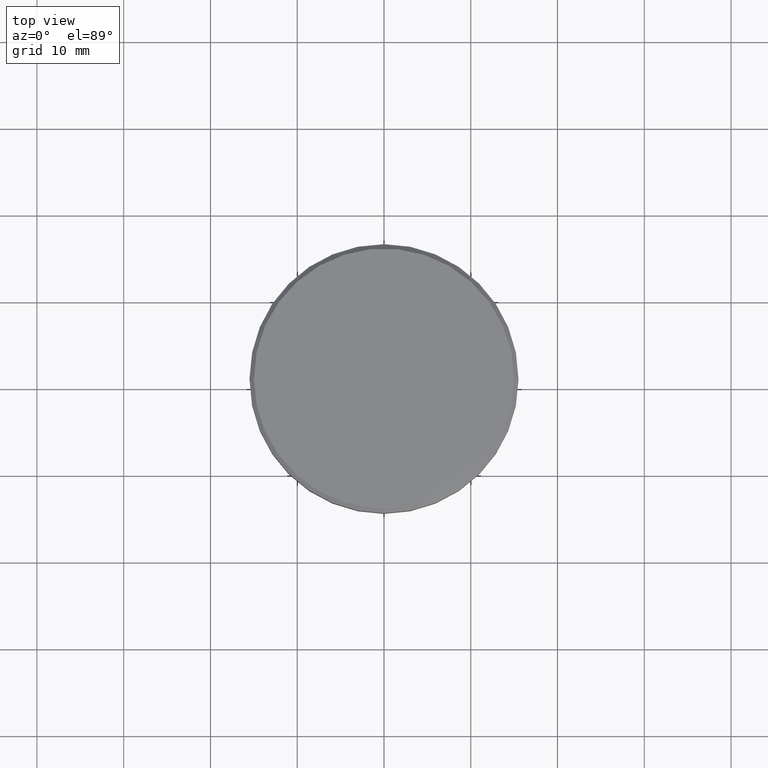
[diagram: clean part render]
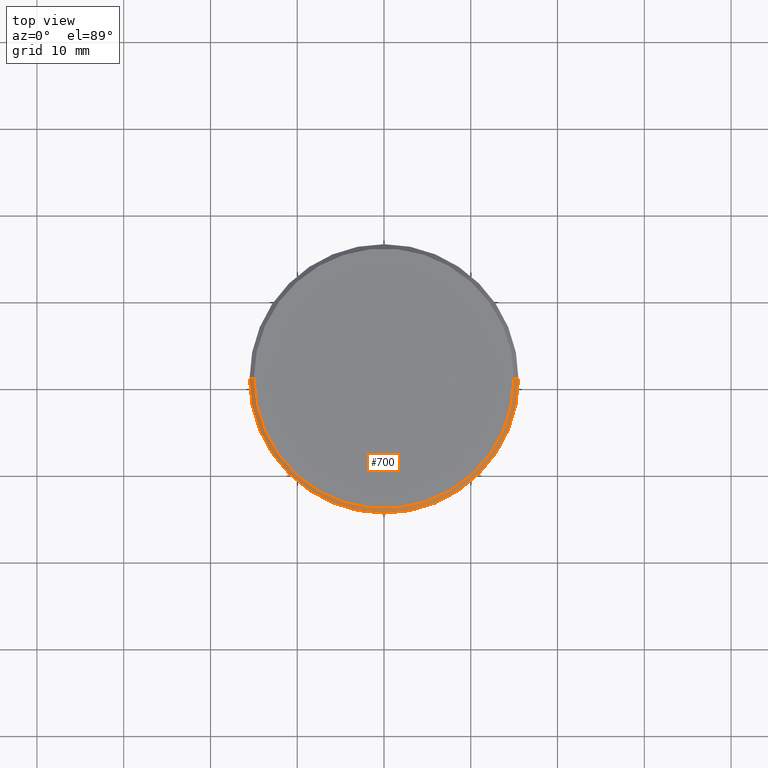
[diagram: same view with one face highlighted and labeled with its STEP entity id]
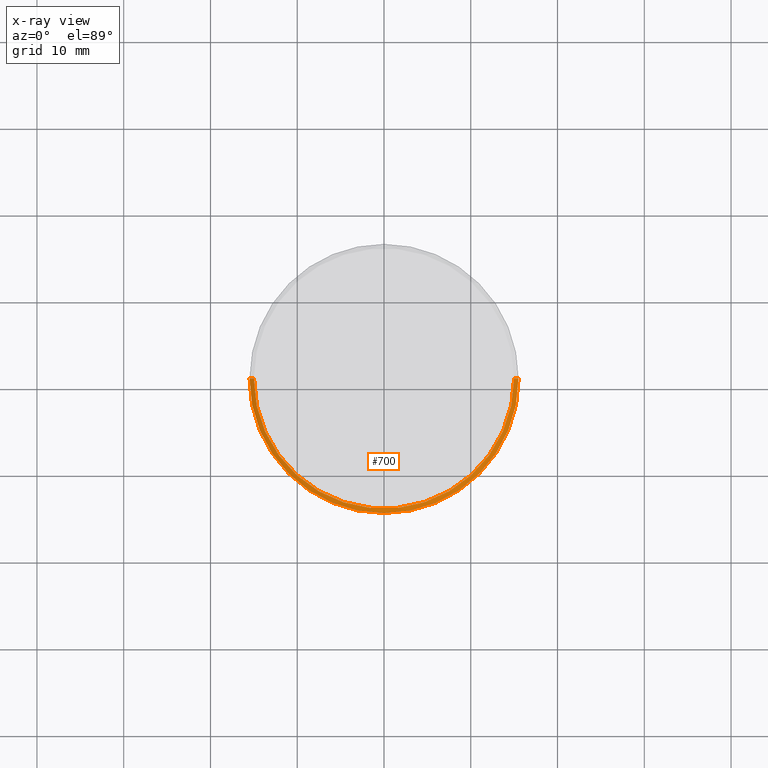
[diagram: x-ray of the same camera — body ghosted, the highlighted face saturated]
A machine part, top view. The second image highlights one B-rep face of the part: STEP entity #700.
The next image is the same camera in x-ray: the body ghosted, the highlighted face saturated — about 0% of this face is hidden behind the body in this view.
In plain terms, the highlighted conical surface has half-angle 45 deg.
Its self-contained STEP definition (entity closure, byte-faithful):
#49 = CARTESIAN_POINT ( 'NONE',  ( 0.000000000000000000, 0.000000000000000000, -0.5000000000000125455 ) ) ;
#61 = FACE_OUTER_BOUND ( 'NONE', #539, .T. ) ;
#73 = LINE ( 'NONE', #622, #1177 ) ;
#157 = ORIENTED_EDGE ( 'NONE', *, *, #1016, .F. ) ;
#160 = DIRECTION ( 'NONE',  ( -1.000000000000000000, 0.000000000000000000, 0.000000000000000000 ) ) ;
#206 = CARTESIAN_POINT ( 'NONE',  ( 15.00000000000000000, 1.836970198721029589E-15, 0.000000000000000000 ) ) ;
#230 = DIRECTION ( 'NONE',  ( 1.000000000000000000, 0.000000000000000000, 0.000000000000000000 ) ) ;
#244 = CARTESIAN_POINT ( 'NONE',  ( 0.000000000000000000, 0.000000000000000000, 0.000000000000000000 ) ) ;
#247 = VECTOR ( 'NONE', #837, 1000.000000000000000 ) ;
#252 = CARTESIAN_POINT ( 'NONE',  ( -15.00000000000000000, 0.000000000000000000, 0.000000000000000000 ) ) ;
#270 = CIRCLE ( 'NONE', #375, 15.50000000000000000 ) ;
#375 = AXIS2_PLACEMENT_3D ( 'NONE', #49, #489, #581 ) ;
#394 = ORIENTED_EDGE ( 'NONE', *, *, #567, .F. ) ;
#398 = LINE ( 'NONE', #206, #247 ) ;
#407 = CARTESIAN_POINT ( 'NONE',  ( 15.50000000000000000, 0.000000000000000000, -0.5000000000000125455 ) ) ;
#484 = CARTESIAN_POINT ( 'NONE',  ( -15.50000000000000000, 1.898202538678397557E-15, -0.5000000000000125455 ) ) ;
#489 = DIRECTION ( 'NONE',  ( 0.000000000000000000, 0.000000000000000000, -1.000000000000000000 ) ) ;
#539 = EDGE_LOOP ( 'NONE', ( #394, #820, #960, #157 ) ) ;
#567 = EDGE_CURVE ( 'NONE', #871, #1152, #398, .T. ) ;
#581 = DIRECTION ( 'NONE',  ( 1.000000000000000000, 0.000000000000000000, 0.000000000000000000 ) ) ;
#622 = CARTESIAN_POINT ( 'NONE',  ( -15.00000000000000000, 0.000000000000000000, 0.000000000000000000 ) ) ;
#689 = DIRECTION ( 'NONE',  ( -0.000000000000000000, -0.000000000000000000, 1.000000000000000000 ) ) ;
#700 = ADVANCED_FACE ( 'NONE', ( #61 ), #913, .T. ) ;
#708 = VERTEX_POINT ( 'NONE', #252 ) ;
#715 = EDGE_CURVE ( 'NONE', #708, #871, #1124, .T. ) ;
#717 = EDGE_CURVE ( 'NONE', #708, #1109, #73, .T. ) ;
#745 = CARTESIAN_POINT ( 'NONE',  ( 15.00000000000000000, 1.867586368699713376E-15, 0.000000000000000000 ) ) ;
#795 = DIRECTION ( 'NONE',  ( -0.7071067811865389130, 0.000000000000000000, -0.7071067811865561215 ) ) ;
#820 = ORIENTED_EDGE ( 'NONE', *, *, #715, .F. ) ;
#837 = DIRECTION ( 'NONE',  ( 0.7071067811865389130, 8.659560562354828088E-17, -0.7071067811865561215 ) ) ;
#841 = AXIS2_PLACEMENT_3D ( 'NONE', #898, #1148, #160 ) ;
#871 = VERTEX_POINT ( 'NONE', #745 ) ;
#898 = CARTESIAN_POINT ( 'NONE',  ( 0.000000000000000000, 0.000000000000000000, 0.000000000000000000 ) ) ;
#913 = CONICAL_SURFACE ( 'NONE', #841, 15.00000000000000000, 0.7853981633974361776 ) ;
#960 = ORIENTED_EDGE ( 'NONE', *, *, #717, .T. ) ;
#1016 = EDGE_CURVE ( 'NONE', #1152, #1109, #270, .T. ) ;
#1081 = AXIS2_PLACEMENT_3D ( 'NONE', #244, #689, #230 ) ;
#1109 = VERTEX_POINT ( 'NONE', #484 ) ;
#1124 = CIRCLE ( 'NONE', #1081, 15.00000000000000000 ) ;
#1148 = DIRECTION ( 'NONE',  ( 0.000000000000000000, 0.000000000000000000, -1.000000000000000000 ) ) ;
#1152 = VERTEX_POINT ( 'NONE', #407 ) ;
#1177 = VECTOR ( 'NONE', #795, 1000.000000000000000 ) ;